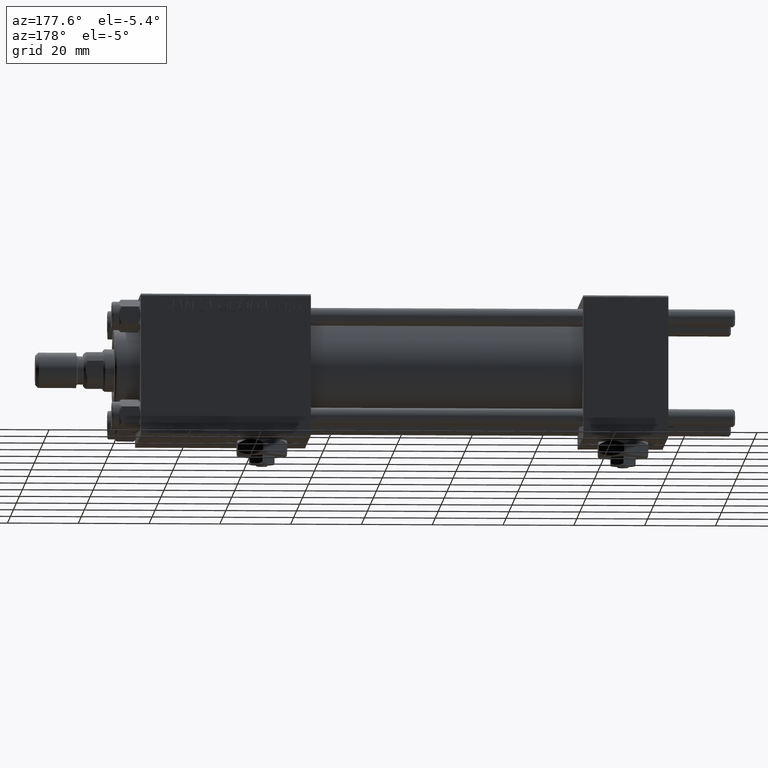
[diagram: clean part render]
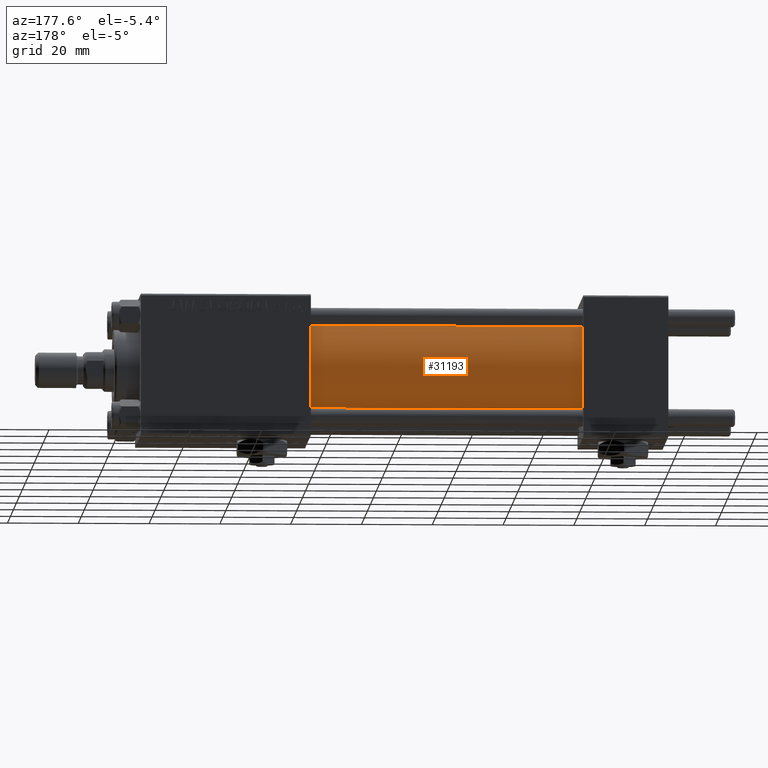
[diagram: same view with one face highlighted and labeled with its STEP entity id]
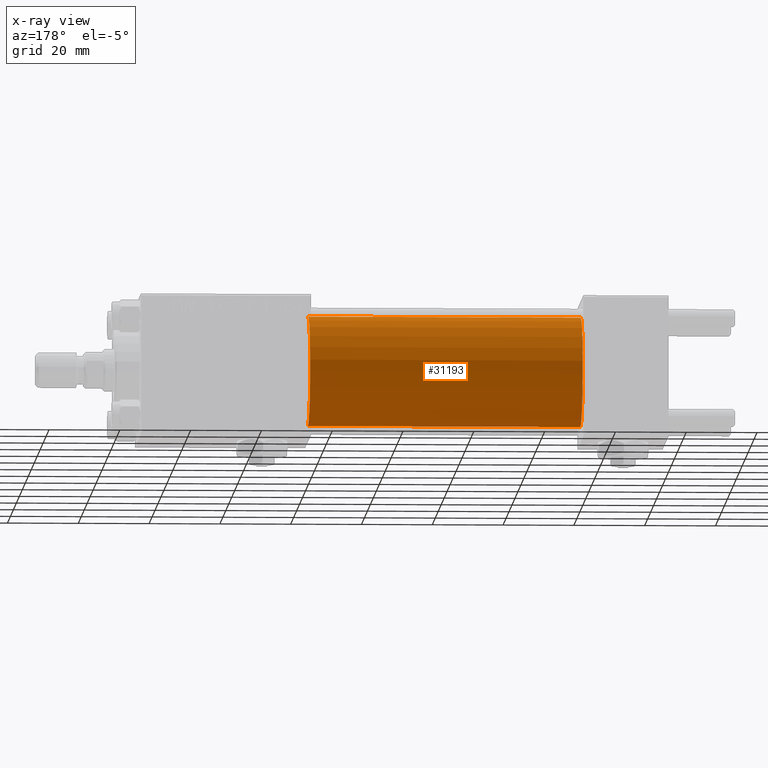
[diagram: x-ray of the same camera — body ghosted, the highlighted face saturated]
A machine part, auxiliary view. The second image highlights one B-rep face of the part: STEP entity #31193.
The next image is the same camera in x-ray: the body ghosted, the highlighted face saturated — about 0% of this face is hidden behind the body in this view.
In plain terms, the highlighted cylindrical surface (partial cylindrical patch) has radius 15.5 mm, axis along (-1, -0, -0).
Its self-contained STEP definition (entity closure, byte-faithful):
#1140 = EDGE_CURVE ( 'NONE', #14691, #33852, #6674, .T. ) ;
#1341 = CARTESIAN_POINT ( 'NONE',  ( 101.0000000000000000, 0.000000000000000000, 15.50000000000000000 ) ) ;
#2286 = DIRECTION ( 'NONE',  ( 1.000000000000000000, 0.000000000000000000, 0.000000000000000000 ) ) ;
#3652 = ORIENTED_EDGE ( 'NONE', *, *, #41708, .T. ) ;
#3679 = EDGE_CURVE ( 'NONE', #13817, #41913, #25237, .T. ) ;
#3764 = DIRECTION ( 'NONE',  ( 0.000000000000000000, 0.000000000000000000, 1.000000000000000000 ) ) ;
#3921 = ORIENTED_EDGE ( 'NONE', *, *, #41703, .F. ) ;
#6674 = CIRCLE ( 'NONE', #50574, 15.50000000000000000 ) ;
#10025 = AXIS2_PLACEMENT_3D ( 'NONE', #40812, #44258, #42118 ) ;
#12001 = FACE_OUTER_BOUND ( 'NONE', #41576, .T. ) ;
#13262 = DIRECTION ( 'NONE',  ( 1.000000000000000000, 0.000000000000000000, 0.000000000000000000 ) ) ;
#13817 = VERTEX_POINT ( 'NONE', #27756 ) ;
#14691 = VERTEX_POINT ( 'NONE', #36496 ) ;
#17065 = ORIENTED_EDGE ( 'NONE', *, *, #3679, .T. ) ;
#17466 = CARTESIAN_POINT ( 'NONE',  ( 101.0000000000000000, 1.898202538678397557E-15, -15.50000000000000000 ) ) ;
#17725 = DIRECTION ( 'NONE',  ( -1.000000000000000000, -0.000000000000000000, -0.000000000000000000 ) ) ;
#23536 = CARTESIAN_POINT ( 'NONE',  ( 101.0000000000000000, 0.000000000000000000, 15.50000000000000000 ) ) ;
#25237 = CIRCLE ( 'NONE', #30310, 15.50000000000000000 ) ;
#25396 = DIRECTION ( 'NONE',  ( 0.000000000000000000, 0.000000000000000000, -1.000000000000000000 ) ) ;
#25664 = CARTESIAN_POINT ( 'NONE',  ( 101.0000000000000000, 0.000000000000000000, 0.000000000000000000 ) ) ;
#27756 = CARTESIAN_POINT ( 'NONE',  ( 23.99999999999999289, 1.898202538678397557E-15, -15.50000000000000000 ) ) ;
#28039 = VECTOR ( 'NONE', #17725, 1000.000000000000000 ) ;
#28104 = CYLINDRICAL_SURFACE ( 'NONE', #10025, 15.50000000000000000 ) ;
#30310 = AXIS2_PLACEMENT_3D ( 'NONE', #36013, #2286, #3764 ) ;
#31193 = ADVANCED_FACE ( 'NONE', ( #12001 ), #28104, .T. ) ;
#33592 = DIRECTION ( 'NONE',  ( -1.000000000000000000, -0.000000000000000000, -0.000000000000000000 ) ) ;
#33852 = VERTEX_POINT ( 'NONE', #23536 ) ;
#33854 = LINE ( 'NONE', #17466, #50008 ) ;
#36013 = CARTESIAN_POINT ( 'NONE',  ( 23.99999999999999289, 0.000000000000000000, 0.000000000000000000 ) ) ;
#36496 = CARTESIAN_POINT ( 'NONE',  ( 101.0000000000000000, 1.898202538678397557E-15, -15.50000000000000000 ) ) ;
#37560 = LINE ( 'NONE', #1341, #28039 ) ;
#40812 = CARTESIAN_POINT ( 'NONE',  ( 101.0000000000000000, 0.000000000000000000, 0.000000000000000000 ) ) ;
#41576 = EDGE_LOOP ( 'NONE', ( #46494, #3652, #17065, #3921 ) ) ;
#41703 = EDGE_CURVE ( 'NONE', #33852, #41913, #37560, .T. ) ;
#41708 = EDGE_CURVE ( 'NONE', #14691, #13817, #33854, .T. ) ;
#41913 = VERTEX_POINT ( 'NONE', #48344 ) ;
#42118 = DIRECTION ( 'NONE',  ( 0.000000000000000000, 0.000000000000000000, 1.000000000000000000 ) ) ;
#44258 = DIRECTION ( 'NONE',  ( -1.000000000000000000, -0.000000000000000000, -0.000000000000000000 ) ) ;
#46494 = ORIENTED_EDGE ( 'NONE', *, *, #1140, .F. ) ;
#48344 = CARTESIAN_POINT ( 'NONE',  ( 23.99999999999999289, 0.000000000000000000, 15.50000000000000000 ) ) ;
#50008 = VECTOR ( 'NONE', #33592, 1000.000000000000000 ) ;
#50574 = AXIS2_PLACEMENT_3D ( 'NONE', #25664, #13262, #25396 ) ;